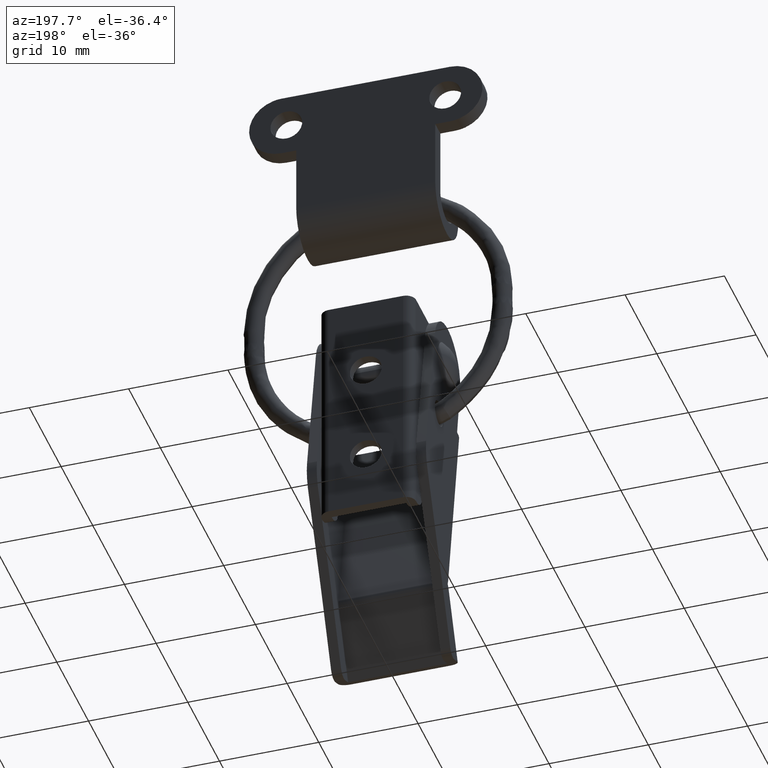
[diagram: clean part render]
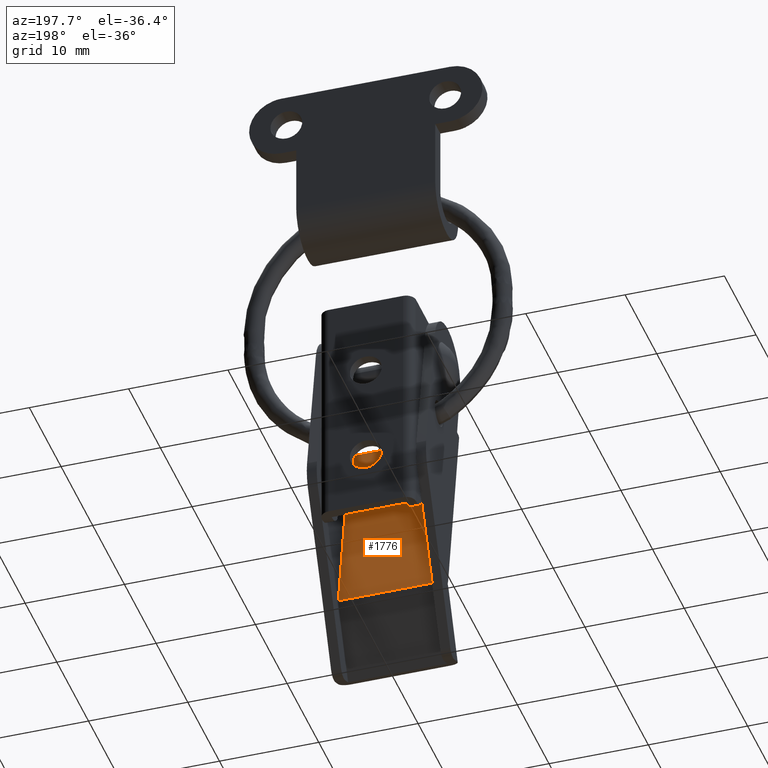
[diagram: same view with one face highlighted and labeled with its STEP entity id]
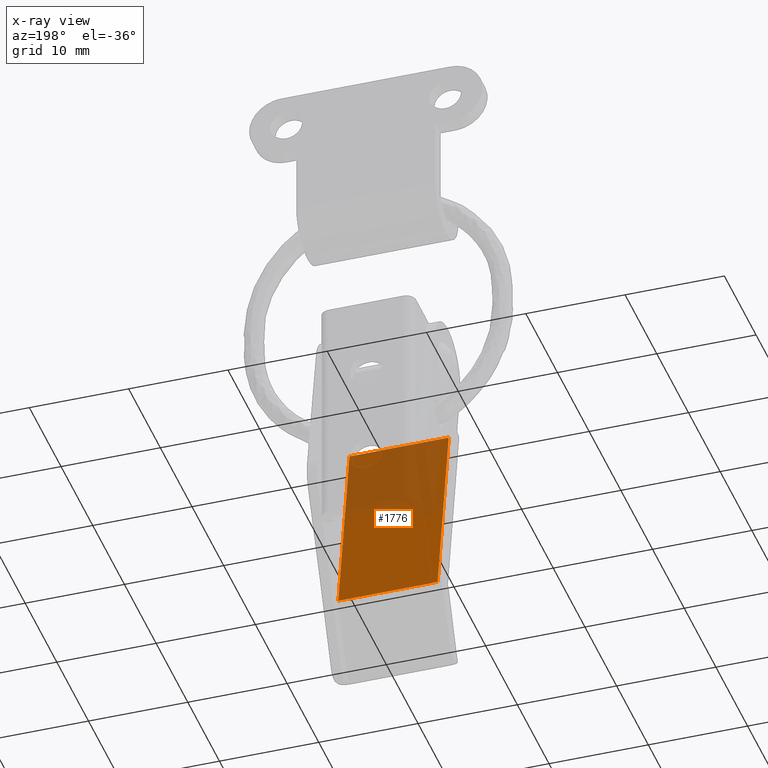
[diagram: x-ray of the same camera — body ghosted, the highlighted face saturated]
A machine part, auxiliary view. The second image highlights one B-rep face of the part: STEP entity #1776.
The next image is the same camera in x-ray: the body ghosted, the highlighted face saturated — about 36% of this face is hidden behind the body in this view.
In plain terms, the highlighted face is a freeform B-spline surface patch.
Its self-contained STEP definition (entity closure, byte-faithful):
#1185=CARTESIAN_POINT('',(5.0,-0.515469346430643,-24.956097579828551));
#1186=VERTEX_POINT('',#1185);
#1207=CARTESIAN_POINT('',(-5.0,-0.515469346430643,-24.956097579828551));
#1208=VERTEX_POINT('',#1207);
#1222=CARTESIAN_POINT('',(5.0,-0.515469346430643,-24.956097579828551));
#1223=CARTESIAN_POINT('',(-5.0,-0.515469346430643,-24.956097579828551));
#1224=QUASI_UNIFORM_CURVE('',1,(#1222,#1223),.UNSPECIFIED.,.F.,.U.);
#1225=EDGE_CURVE('',#1186,#1208,#1224,.T.);
#1749=CARTESIAN_POINT('',(-5.499499980618059,-0.340742899599647,-25.937897515735848));
#1750=CARTESIAN_POINT('',(-5.499499980618059,-4.188226429764426,-4.318622633016890));
#1751=CARTESIAN_POINT('',(5.499500248838960,-0.340742899599647,-25.937897515735848));
#1752=CARTESIAN_POINT('',(5.499500248838960,-4.188226429764426,-4.318622633016890));
#1753=B_SPLINE_SURFACE_WITH_KNOTS('',1,1,((#1749,#1751),(#1750,#1752)),.UNSPECIFIED.,.F.,.F.,.U.,(2,2),(2,2),(0.0,21.958965730868378),(0.0,10.999000229457019),.UNSPECIFIED.);
#1754=CARTESIAN_POINT('',(5.0,-4.013499732734795,-5.300423974807511));
#1755=VERTEX_POINT('',#1754);
#1756=CARTESIAN_POINT('',(5.0,-4.013499732734795,-5.300423974807511));
#1757=CARTESIAN_POINT('',(5.0,-0.515469346430643,-24.956097579828551));
#1758=QUASI_UNIFORM_CURVE('',1,(#1756,#1757),.UNSPECIFIED.,.F.,.U.);
#1759=EDGE_CURVE('',#1755,#1186,#1758,.T.);
#1760=ORIENTED_EDGE('',*,*,#1759,.T.);
#1761=ORIENTED_EDGE('',*,*,#1225,.T.);
#1762=CARTESIAN_POINT('',(-5.0,-4.013499732734795,-5.300423974807511));
#1763=VERTEX_POINT('',#1762);
#1764=CARTESIAN_POINT('',(-5.0,-4.013499732734795,-5.300423974807511));
#1765=CARTESIAN_POINT('',(-5.0,-0.515469346430643,-24.956097579828551));
#1766=QUASI_UNIFORM_CURVE('',1,(#1764,#1765),.UNSPECIFIED.,.F.,.U.);
#1767=EDGE_CURVE('',#1763,#1208,#1766,.T.);
#1768=ORIENTED_EDGE('',*,*,#1767,.F.);
#1769=CARTESIAN_POINT('',(5.0,-4.013499732734795,-5.300423974807511));
#1770=CARTESIAN_POINT('',(-5.0,-4.013499732734795,-5.300423974807511));
#1771=QUASI_UNIFORM_CURVE('',1,(#1769,#1770),.UNSPECIFIED.,.F.,.U.);
#1772=EDGE_CURVE('',#1755,#1763,#1771,.T.);
#1773=ORIENTED_EDGE('',*,*,#1772,.F.);
#1774=EDGE_LOOP('',(#1760,#1761,#1768,#1773));
#1775=FACE_OUTER_BOUND('',#1774,.T.);
#1776=ADVANCED_FACE('',(#1775),#1753,.T.);